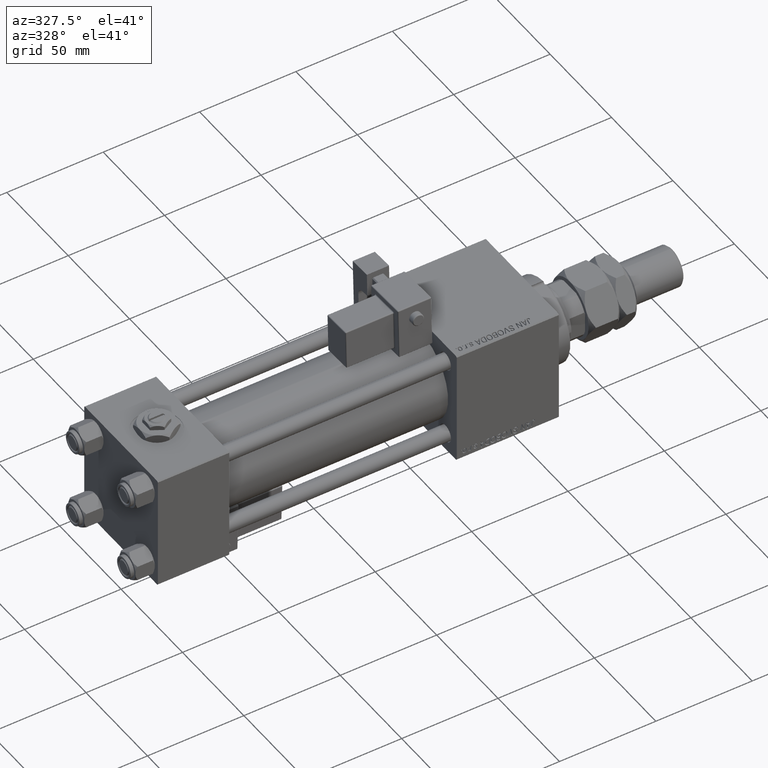
[diagram: clean part render]
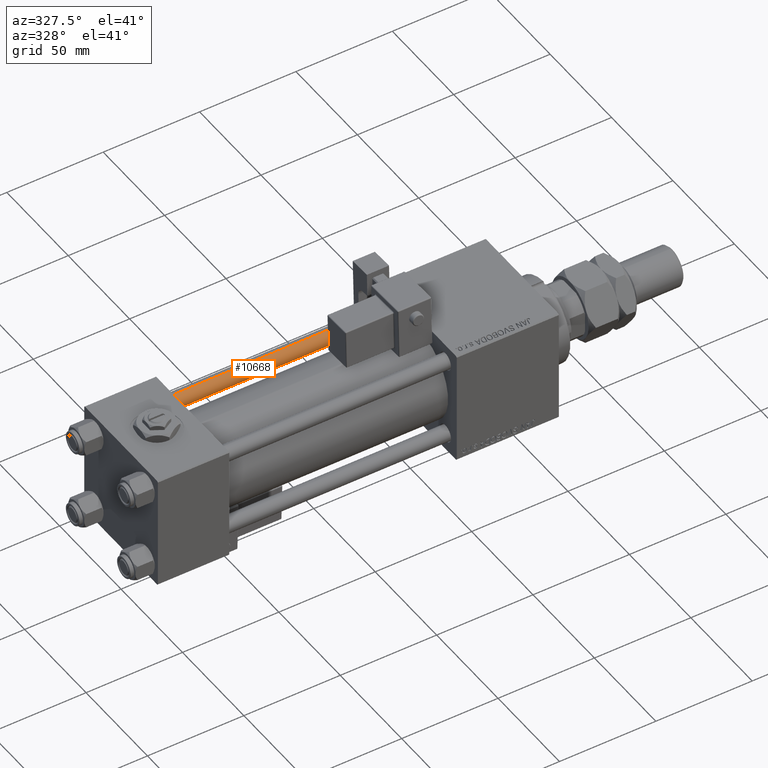
[diagram: same view with one face highlighted and labeled with its STEP entity id]
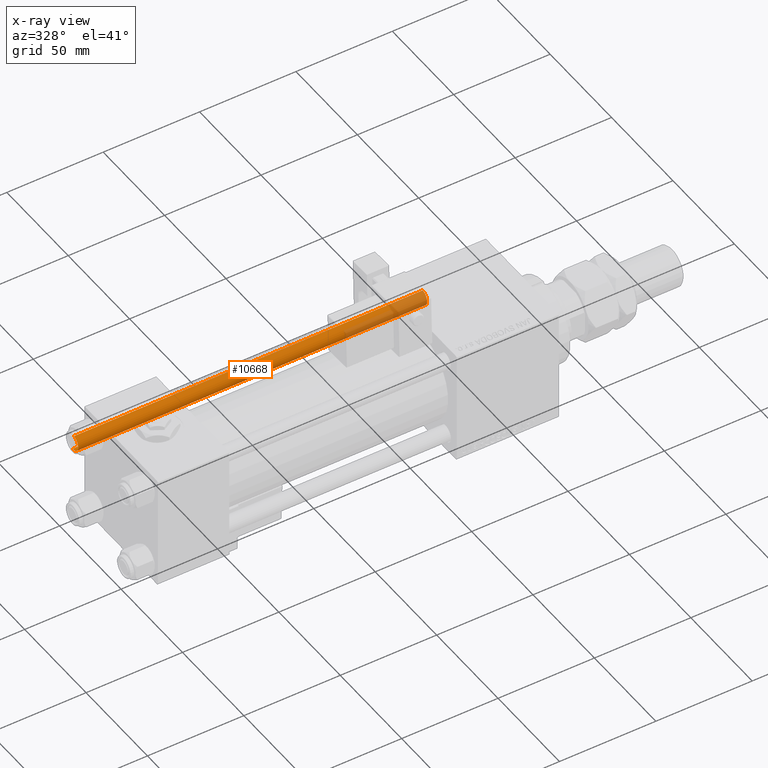
[diagram: x-ray of the same camera — body ghosted, the highlighted face saturated]
A machine part, auxiliary view. The second image highlights one B-rep face of the part: STEP entity #10668.
The next image is the same camera in x-ray: the body ghosted, the highlighted face saturated — about 18% of this face is hidden behind the body in this view.
In plain terms, the highlighted cylindrical surface (edge-blend (fillet) strip) has radius 4 mm, axis along (-1, 0, 0).
Its self-contained STEP definition (entity closure, byte-faithful):
#838 = CIRCLE ( 'NONE', #19816, 4.000000000000000000 ) ;
#1679 = EDGE_CURVE ( 'NONE', #5733, #55029, #41748, .T. ) ;
#2011 = VECTOR ( 'NONE', #28327, 1000.000000000000000 ) ;
#2525 = EDGE_CURVE ( 'NONE', #55029, #46060, #15858, .T. ) ;
#3252 = FACE_OUTER_BOUND ( 'NONE', #31919, .T. ) ;
#5445 = DIRECTION ( 'NONE',  ( -0.000000000000000000, -0.000000000000000000, -1.000000000000000000 ) ) ;
#5733 = VERTEX_POINT ( 'NONE', #50932 ) ;
#5843 = CARTESIAN_POINT ( 'NONE',  ( -4.000000000000000000, 0.000000000000000000, 181.5000000000000284 ) ) ;
#6102 = CARTESIAN_POINT ( 'NONE',  ( 0.000000000000000000, 0.000000000000000000, 181.5000000000000284 ) ) ;
#6328 = ORIENTED_EDGE ( 'NONE', *, *, #29690, .F. ) ;
#6669 = ORIENTED_EDGE ( 'NONE', *, *, #47167, .T. ) ;
#9249 = DIRECTION ( 'NONE',  ( 0.000000000000000000, 0.000000000000000000, -1.000000000000000000 ) ) ;
#10668 = ADVANCED_FACE ( 'NONE', ( #3252 ), #20242, .T. ) ;
#11052 = CARTESIAN_POINT ( 'NONE',  ( -4.000000000000000000, 0.000000000000000000, 182.0000000000000000 ) ) ;
#15476 = CARTESIAN_POINT ( 'NONE',  ( 4.000000000000000000, 4.898587196589412829E-16, 0.4999999999999726885 ) ) ;
#15858 = LINE ( 'NONE', #11052, #2011 ) ;
#15991 = DIRECTION ( 'NONE',  ( -0.000000000000000000, -0.000000000000000000, -1.000000000000000000 ) ) ;
#16267 = DIRECTION ( 'NONE',  ( -1.000000000000000000, 0.000000000000000000, 0.000000000000000000 ) ) ;
#18295 = DIRECTION ( 'NONE',  ( 1.000000000000000000, 0.000000000000000000, 0.000000000000000000 ) ) ;
#19816 = AXIS2_PLACEMENT_3D ( 'NONE', #28284, #41592, #33104 ) ;
#20242 = CYLINDRICAL_SURFACE ( 'NONE', #27548, 4.000000000000000000 ) ;
#22693 = ORIENTED_EDGE ( 'NONE', *, *, #1679, .T. ) ;
#27548 = AXIS2_PLACEMENT_3D ( 'NONE', #46028, #15991, #16267 ) ;
#28284 = CARTESIAN_POINT ( 'NONE',  ( 0.000000000000000000, 0.000000000000000000, 0.4999999999999726885 ) ) ;
#28327 = DIRECTION ( 'NONE',  ( -0.000000000000000000, -0.000000000000000000, -1.000000000000000000 ) ) ;
#29690 = EDGE_CURVE ( 'NONE', #5733, #40719, #44255, .T. ) ;
#31919 = EDGE_LOOP ( 'NONE', ( #6328, #22693, #35523, #6669 ) ) ;
#33104 = DIRECTION ( 'NONE',  ( 1.000000000000000000, 0.000000000000000000, 0.000000000000000000 ) ) ;
#34285 = CARTESIAN_POINT ( 'NONE',  ( -4.000000000000000000, 0.000000000000000000, 0.4999999999999726885 ) ) ;
#35523 = ORIENTED_EDGE ( 'NONE', *, *, #2525, .T. ) ;
#40719 = VERTEX_POINT ( 'NONE', #15476 ) ;
#41592 = DIRECTION ( 'NONE',  ( -0.000000000000000000, -0.000000000000000000, 1.000000000000000000 ) ) ;
#41748 = CIRCLE ( 'NONE', #54401, 4.000000000000000000 ) ;
#43987 = CARTESIAN_POINT ( 'NONE',  ( 4.000000000000000000, 4.898587196589412829E-16, 182.0000000000000000 ) ) ;
#44255 = LINE ( 'NONE', #43987, #50182 ) ;
#46028 = CARTESIAN_POINT ( 'NONE',  ( 0.000000000000000000, 0.000000000000000000, 182.0000000000000000 ) ) ;
#46060 = VERTEX_POINT ( 'NONE', #34285 ) ;
#47167 = EDGE_CURVE ( 'NONE', #46060, #40719, #838, .T. ) ;
#50182 = VECTOR ( 'NONE', #5445, 1000.000000000000000 ) ;
#50932 = CARTESIAN_POINT ( 'NONE',  ( 4.000000000000000000, 4.898587196589412829E-16, 181.5000000000000284 ) ) ;
#54401 = AXIS2_PLACEMENT_3D ( 'NONE', #6102, #9249, #18295 ) ;
#55029 = VERTEX_POINT ( 'NONE', #5843 ) ;